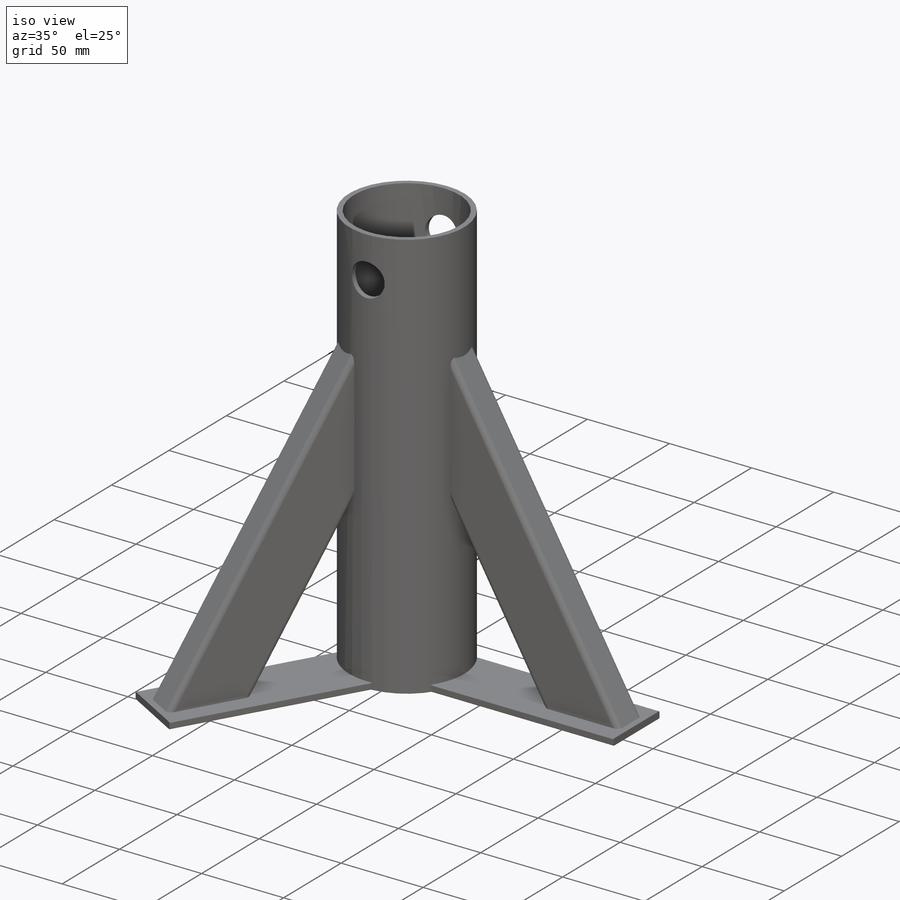
[diagram: iso view]
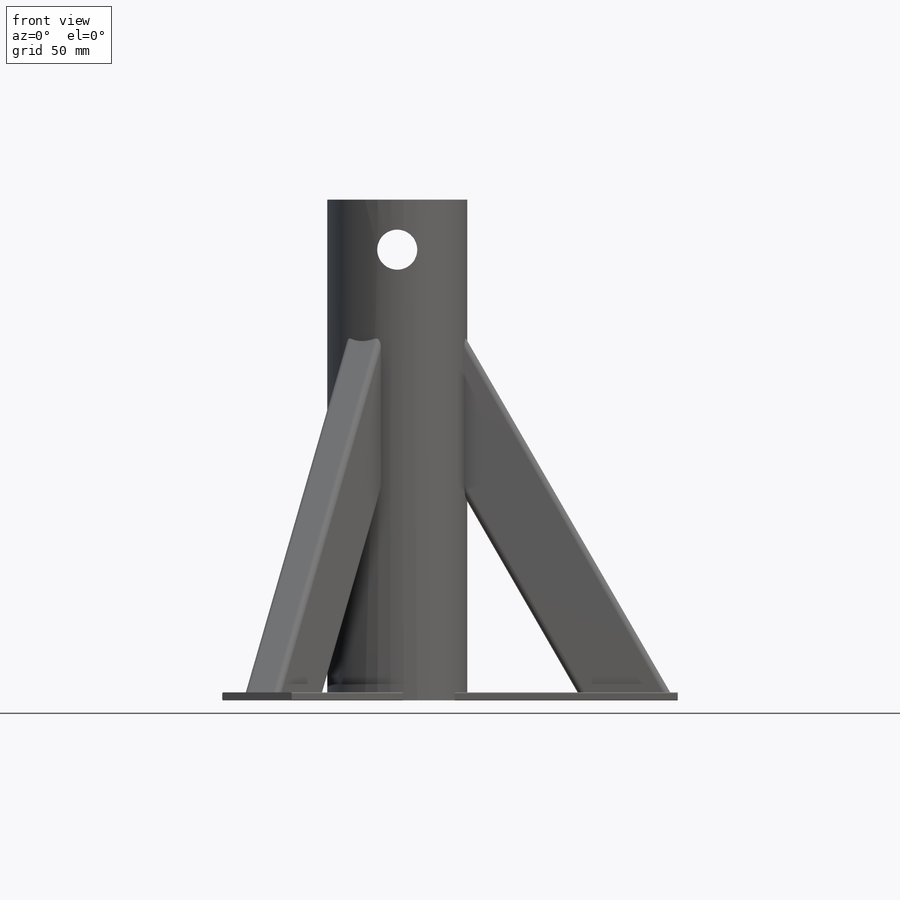
[diagram: front view]
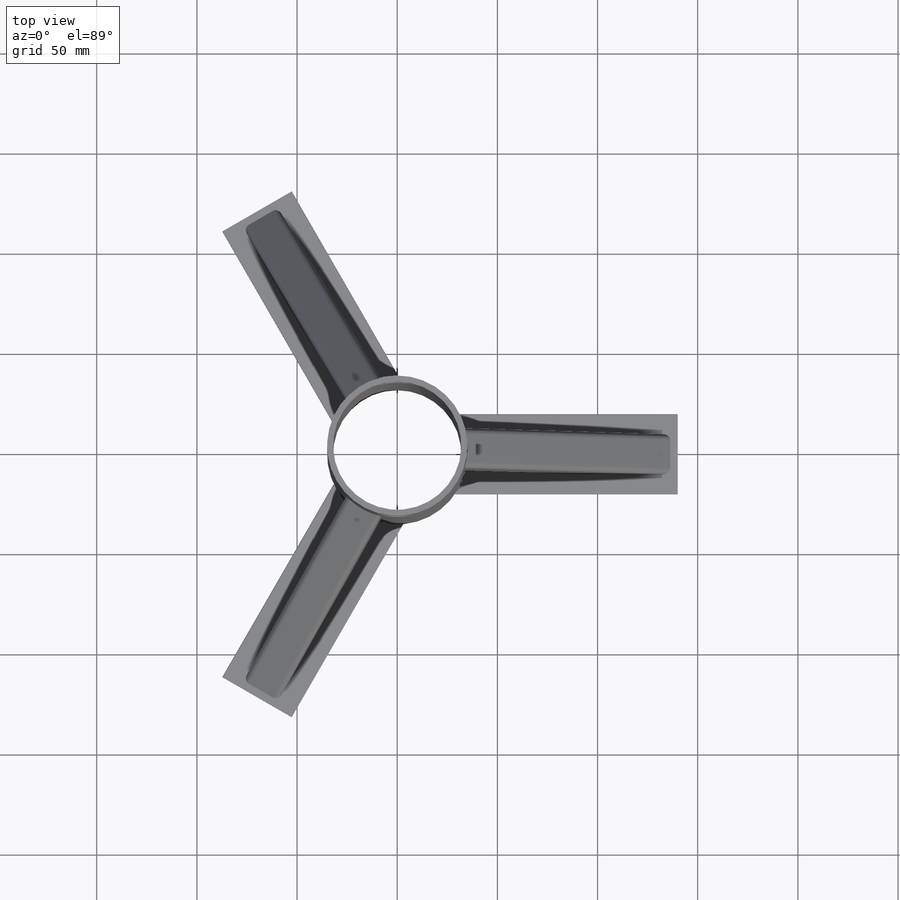
[diagram: top view]
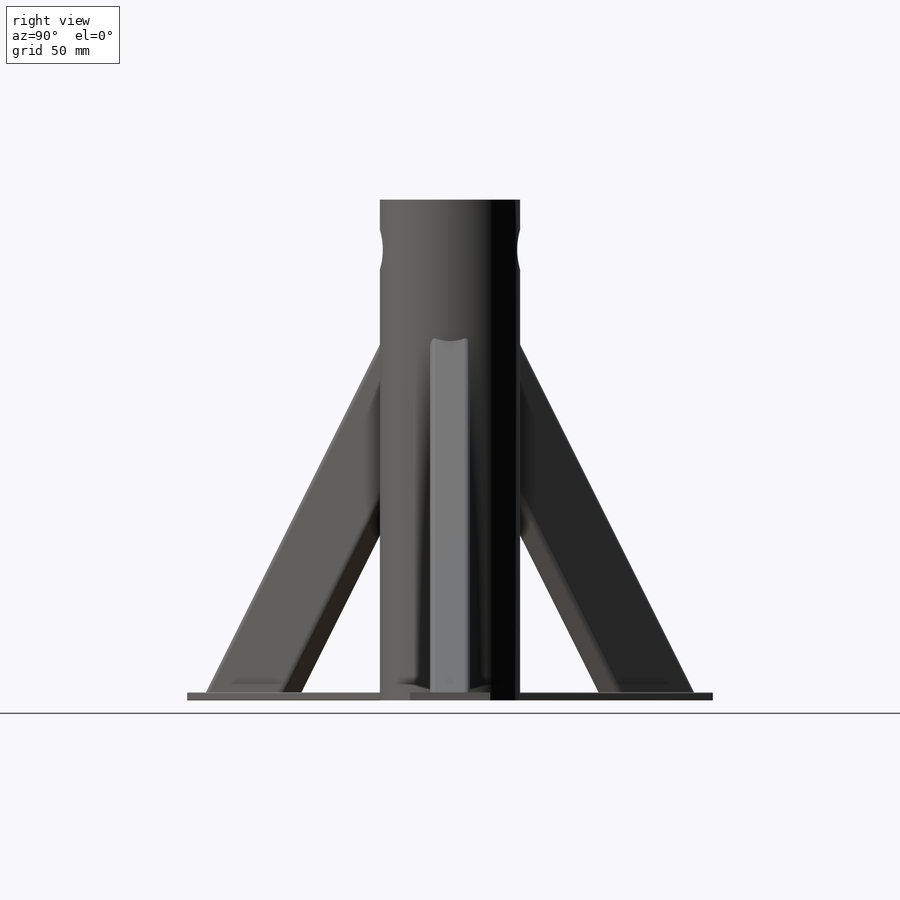
[diagram: right view]
SOLIDWORKS PART (.sldprt)
format: sldprt  version: not decoded by parser v0  size: 482,304 bytes
history: native  units: mm
features: plane x6, sketch x5, material x1, pattern_circular x1, cut_extrude x1 (+32 scaffold rows collapsed)
feature tree (46):
  scaffold x32  (default folders/planes/origin — collapsed)
  material  "Material <not specified>"
  plane  "Alzado"
  plane  "Planta"
  plane  "Vista lateral"
  sketch  "Sketch1"  dims[c1.D1=250.0mm c1.D2=200.0mm c1.D3=250.0mm c2.D3=30.0deg c2.D4=~115.470054mm c3.D3=200.0mm c3.D2=140.0mm c4.D3=250.0mm c5.D3=30.0deg c5.D4=~242.487113mm c5.D1=250.0mm c6.D3=200.0mm c6.D4=250.0mm c7.D4=~34.99202deg c7.D2=250.0mm c8.D2=30.0deg c8.D4=140.0mm]
  plane  "Plane1"
  sketch  "Sketch11"  dims[In_dia=64.0mm Out_dia=70.0mm]
  plane  "Plane2"
  sketch  "Sketch12"  dims[c1.D1=6.35mm c1.D2=6.35mm c1.D3=6.35mm c1.D4=6.35mm c1.D5=6.35mm c1.D6=6.35mm c1.D7=6.35mm c1.D8=6.35mm c2.D1=6.604mm c2.D2=6.604mm c2.D3=6.604mm c2.D4=6.604mm c3.D1=0.5mm c3.Thickness=3.2mm c3.D4=12.9032mm c3.D5=12.9286mm c3.V_leg=40.0mm c3.H_leg=4.0mm c4.D4=50.3428mm c4.D5=50.8508mm c5.D4=~41.274964mm c5.D5=~41.274964mm]
  plane  "Plane3"
  sketch  "Sketch13"  dims[c1.D1=6.35mm c1.D2=6.35mm c1.D3=6.35mm c1.D4=6.35mm c1.D5=6.35mm c1.D6=6.35mm c1.D7=6.35mm c1.D8=6.35mm c2.D1=6.604mm c2.D2=6.604mm c2.D3=6.604mm c2.D4=6.604mm c3.D1=3.0mm c3.Thickness=2.0mm c3.D4=12.9032mm c3.D5=12.9286mm c3.V_leg=20.0mm c3.H_leg=40.0mm c4.D4=50.3428mm c4.D5=50.8508mm c5.D4=~41.274964mm c5.D5=~41.274964mm]
  pattern_circular  "CirPattern1"  Count=3 Angle=120deg
  sketch  "Sketch14"  dims[D1=20.0mm D2=25.0mm]
  cut_extrude  "Cut-Extrude1"  [1 undecoded]
decode coverage: 6 of 7 modeling features carry decoded parameters
note: ~ marks probable driven/reference dimensions
note: 1 parameter value undecoded
note: suppression state not decoded; provenance and decode notes live in map.json
